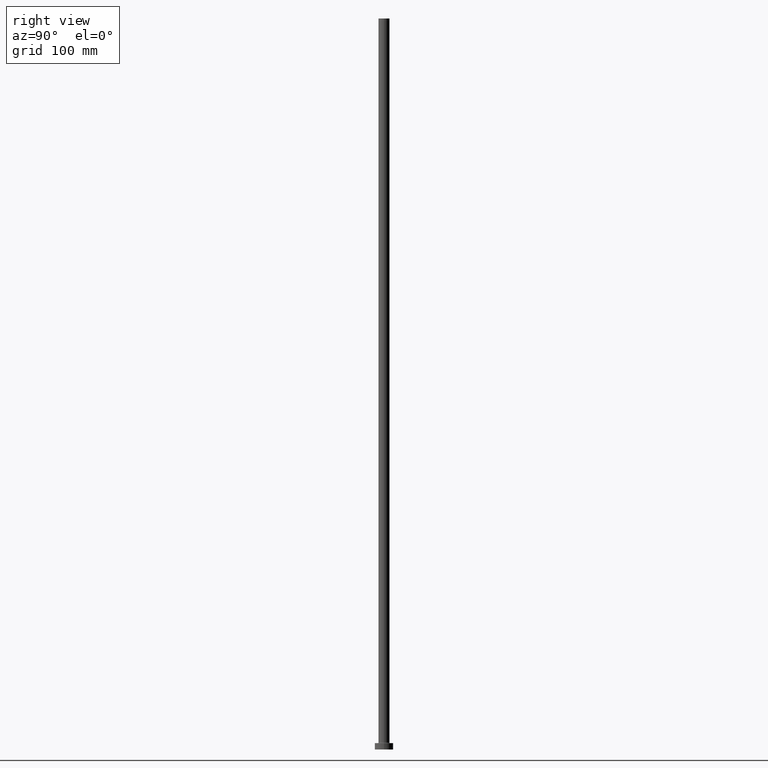
[diagram: clean part render]
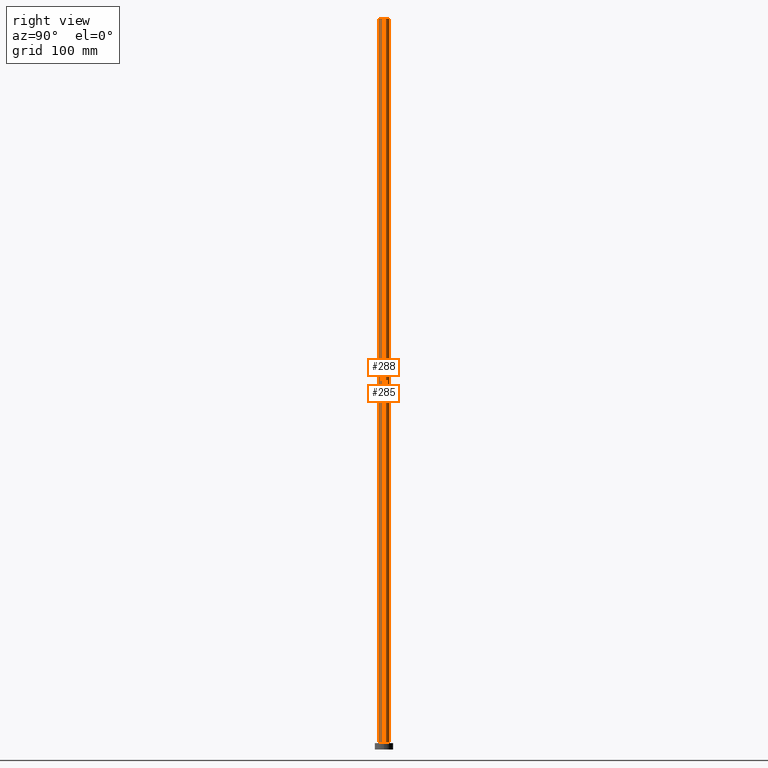
[diagram: same view with one multi-face feature highlighted, each face labeled with its STEP entity id]
A machine part, right view. The highlighted faces form ONE feature: a constant-radius fillet chain: 2 tangent blend faces with common blend radius 6 mm. The faces share edges in the B-rep.
Their STEP definitions:
[1] entity #288 (Cylinder):
#14 = DIRECTION ( 'NONE',  ( -1.000000000000000000, 0.000000000000000000, 0.000000000000000000 ) ) ;
#19 = ORIENTED_EDGE ( 'NONE', *, *, #457, .F. ) ;
#58 = VERTEX_POINT ( 'NONE', #266 ) ;
#67 = CARTESIAN_POINT ( 'NONE',  ( 0.000000000000000000, 0.000000000000000000, 800.0000000000000000 ) ) ;
#80 = DIRECTION ( 'NONE',  ( -0.000000000000000000, -0.000000000000000000, -1.000000000000000000 ) ) ;
#81 = VECTOR ( 'NONE', #353, 1000.000000000000000 ) ;
#84 = LINE ( 'NONE', #250, #81 ) ;
#95 = DIRECTION ( 'NONE',  ( 0.000000000000000000, 0.000000000000000000, 1.000000000000000000 ) ) ;
#108 = VERTEX_POINT ( 'NONE', #112 ) ;
#112 = CARTESIAN_POINT ( 'NONE',  ( -6.000000000000000888, 0.000000000000000000, 800.0000000000000000 ) ) ;
#132 = AXIS2_PLACEMENT_3D ( 'NONE', #406, #371, #260 ) ;
#166 = CARTESIAN_POINT ( 'NONE',  ( 6.000000000000000888, 7.347880794884120722E-16, 7.499999999999951150 ) ) ;
#170 = ORIENTED_EDGE ( 'NONE', *, *, #413, .T. ) ;
#184 = CYLINDRICAL_SURFACE ( 'NONE', #341, 6.000000000000000888 ) ;
#193 = EDGE_CURVE ( 'NONE', #314, #451, #84, .T. ) ;
#211 = CIRCLE ( 'NONE', #367, 6.000000000000000888 ) ;
#225 = DIRECTION ( 'NONE',  ( -0.000000000000000000, -0.000000000000000000, -1.000000000000000000 ) ) ;
#243 = CARTESIAN_POINT ( 'NONE',  ( 6.000000000000000888, 7.347880794884120722E-16, 800.0000000000000000 ) ) ;
#245 = FACE_OUTER_BOUND ( 'NONE', #393, .T. ) ;
#250 = CARTESIAN_POINT ( 'NONE',  ( 6.000000000000000888, 7.347880794884120722E-16, 800.0000000000000000 ) ) ;
#260 = DIRECTION ( 'NONE',  ( 1.000000000000000000, 0.000000000000000000, 0.000000000000000000 ) ) ;
#266 = CARTESIAN_POINT ( 'NONE',  ( -6.000000000000000888, 0.000000000000000000, 7.499999999999951150 ) ) ;
#267 = CARTESIAN_POINT ( 'NONE',  ( -6.000000000000000888, 0.000000000000000000, 800.0000000000000000 ) ) ;
#273 = ORIENTED_EDGE ( 'NONE', *, *, #193, .F. ) ;
#288 = ADVANCED_FACE ( 'NONE', ( #245 ), #184, .T. ) ;
#314 = VERTEX_POINT ( 'NONE', #243 ) ;
#328 = CARTESIAN_POINT ( 'NONE',  ( 0.000000000000000000, 0.000000000000000000, 800.0000000000000000 ) ) ;
#329 = VECTOR ( 'NONE', #225, 1000.000000000000000 ) ;
#341 = AXIS2_PLACEMENT_3D ( 'NONE', #328, #80, #14 ) ;
#353 = DIRECTION ( 'NONE',  ( -0.000000000000000000, -0.000000000000000000, -1.000000000000000000 ) ) ;
#367 = AXIS2_PLACEMENT_3D ( 'NONE', #67, #95, #448 ) ;
#371 = DIRECTION ( 'NONE',  ( 0.000000000000000000, 0.000000000000000000, 1.000000000000000000 ) ) ;
#375 = ORIENTED_EDGE ( 'NONE', *, *, #382, .T. ) ;
#382 = EDGE_CURVE ( 'NONE', #108, #58, #418, .T. ) ;
#393 = EDGE_LOOP ( 'NONE', ( #273, #19, #375, #170 ) ) ;
#406 = CARTESIAN_POINT ( 'NONE',  ( 0.000000000000000000, 0.000000000000000000, 7.499999999999951150 ) ) ;
#413 = EDGE_CURVE ( 'NONE', #58, #451, #437, .T. ) ;
#418 = LINE ( 'NONE', #267, #329 ) ;
#437 = CIRCLE ( 'NONE', #132, 6.000000000000000888 ) ;
#448 = DIRECTION ( 'NONE',  ( 1.000000000000000000, 0.000000000000000000, 0.000000000000000000 ) ) ;
#451 = VERTEX_POINT ( 'NONE', #166 ) ;
#457 = EDGE_CURVE ( 'NONE', #108, #314, #211, .T. ) ;
[2] entity #285 (Cylinder):
#4 = DIRECTION ( 'NONE',  ( -1.000000000000000000, 0.000000000000000000, 0.000000000000000000 ) ) ;
#9 = AXIS2_PLACEMENT_3D ( 'NONE', #45, #181, #4 ) ;
#29 = CARTESIAN_POINT ( 'NONE',  ( 0.000000000000000000, 0.000000000000000000, 800.0000000000000000 ) ) ;
#31 = DIRECTION ( 'NONE',  ( 1.000000000000000000, 0.000000000000000000, 0.000000000000000000 ) ) ;
#45 = CARTESIAN_POINT ( 'NONE',  ( 0.000000000000000000, 0.000000000000000000, 800.0000000000000000 ) ) ;
#47 = CIRCLE ( 'NONE', #219, 6.000000000000000888 ) ;
#51 = EDGE_CURVE ( 'NONE', #314, #108, #47, .T. ) ;
#58 = VERTEX_POINT ( 'NONE', #266 ) ;
#73 = AXIS2_PLACEMENT_3D ( 'NONE', #238, #196, #31 ) ;
#81 = VECTOR ( 'NONE', #353, 1000.000000000000000 ) ;
#84 = LINE ( 'NONE', #250, #81 ) ;
#108 = VERTEX_POINT ( 'NONE', #112 ) ;
#112 = CARTESIAN_POINT ( 'NONE',  ( -6.000000000000000888, 0.000000000000000000, 800.0000000000000000 ) ) ;
#129 = EDGE_CURVE ( 'NONE', #451, #58, #239, .T. ) ;
#157 = DIRECTION ( 'NONE',  ( 1.000000000000000000, 0.000000000000000000, 0.000000000000000000 ) ) ;
#166 = CARTESIAN_POINT ( 'NONE',  ( 6.000000000000000888, 7.347880794884120722E-16, 7.499999999999951150 ) ) ;
#180 = ORIENTED_EDGE ( 'NONE', *, *, #129, .T. ) ;
#181 = DIRECTION ( 'NONE',  ( -0.000000000000000000, -0.000000000000000000, -1.000000000000000000 ) ) ;
#193 = EDGE_CURVE ( 'NONE', #314, #451, #84, .T. ) ;
#195 = ORIENTED_EDGE ( 'NONE', *, *, #382, .F. ) ;
#196 = DIRECTION ( 'NONE',  ( 0.000000000000000000, 0.000000000000000000, 1.000000000000000000 ) ) ;
#219 = AXIS2_PLACEMENT_3D ( 'NONE', #29, #313, #157 ) ;
#225 = DIRECTION ( 'NONE',  ( -0.000000000000000000, -0.000000000000000000, -1.000000000000000000 ) ) ;
#238 = CARTESIAN_POINT ( 'NONE',  ( 0.000000000000000000, 0.000000000000000000, 7.499999999999951150 ) ) ;
#239 = CIRCLE ( 'NONE', #73, 6.000000000000000888 ) ;
#243 = CARTESIAN_POINT ( 'NONE',  ( 6.000000000000000888, 7.347880794884120722E-16, 800.0000000000000000 ) ) ;
#250 = CARTESIAN_POINT ( 'NONE',  ( 6.000000000000000888, 7.347880794884120722E-16, 800.0000000000000000 ) ) ;
#266 = CARTESIAN_POINT ( 'NONE',  ( -6.000000000000000888, 0.000000000000000000, 7.499999999999951150 ) ) ;
#267 = CARTESIAN_POINT ( 'NONE',  ( -6.000000000000000888, 0.000000000000000000, 800.0000000000000000 ) ) ;
#285 = ADVANCED_FACE ( 'NONE', ( #316 ), #434, .T. ) ;
#313 = DIRECTION ( 'NONE',  ( 0.000000000000000000, 0.000000000000000000, 1.000000000000000000 ) ) ;
#314 = VERTEX_POINT ( 'NONE', #243 ) ;
#316 = FACE_OUTER_BOUND ( 'NONE', #441, .T. ) ;
#329 = VECTOR ( 'NONE', #225, 1000.000000000000000 ) ;
#353 = DIRECTION ( 'NONE',  ( -0.000000000000000000, -0.000000000000000000, -1.000000000000000000 ) ) ;
#368 = ORIENTED_EDGE ( 'NONE', *, *, #193, .T. ) ;
#382 = EDGE_CURVE ( 'NONE', #108, #58, #418, .T. ) ;
#383 = ORIENTED_EDGE ( 'NONE', *, *, #51, .F. ) ;
#418 = LINE ( 'NONE', #267, #329 ) ;
#434 = CYLINDRICAL_SURFACE ( 'NONE', #9, 6.000000000000000888 ) ;
#441 = EDGE_LOOP ( 'NONE', ( #383, #368, #180, #195 ) ) ;
#451 = VERTEX_POINT ( 'NONE', #166 ) ;